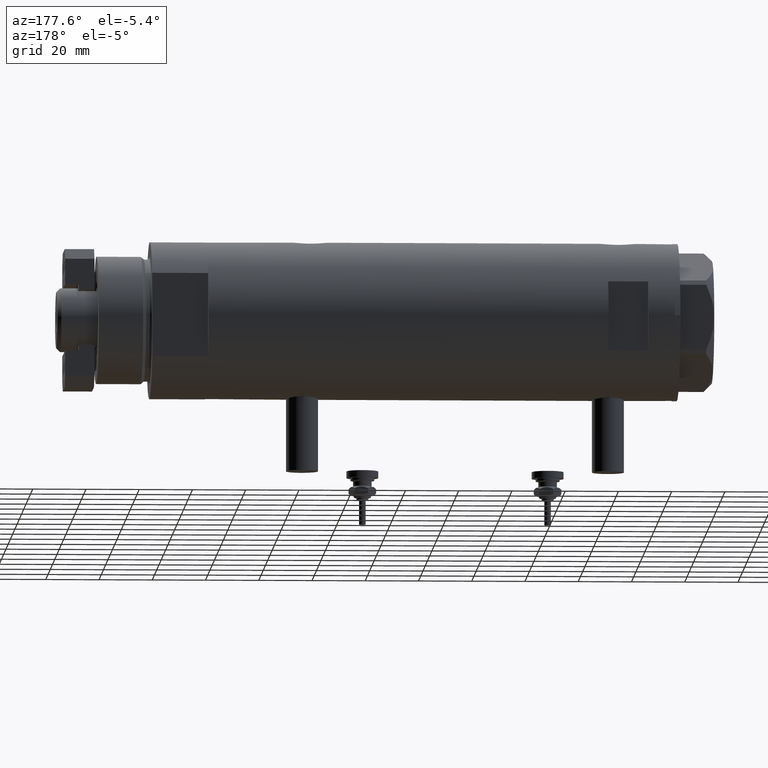
[diagram: clean part render]
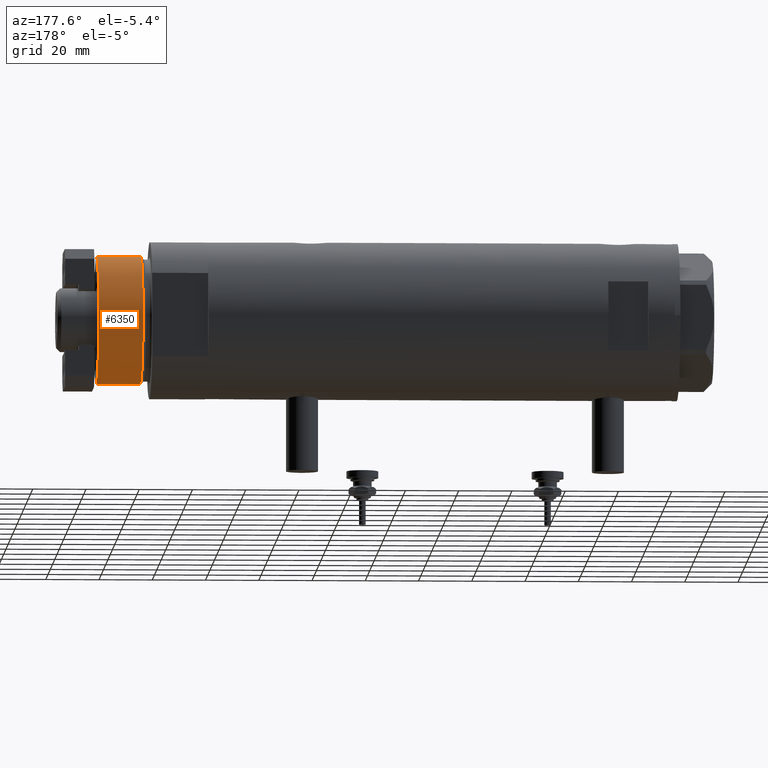
[diagram: same view with one face highlighted and labeled with its STEP entity id]
A machine part, auxiliary view. The second image highlights one B-rep face of the part: STEP entity #6350.
In plain terms, the highlighted cylindrical surface (partial cylindrical patch) has radius 24 mm, axis along (-1, -0, 0).
Its self-contained STEP definition (entity closure, byte-faithful):
#159 = VERTEX_POINT ( 'NONE', #6356 ) ;
#203 = DIRECTION ( 'NONE',  ( 1.000000000000000000, 0.000000000000000000, 0.000000000000000000 ) ) ;
#386 = CARTESIAN_POINT ( 'NONE',  ( 24.00000000000000355, 2.939152317953648289E-15, 41.00000000000000000 ) ) ;
#443 = DIRECTION ( 'NONE',  ( -0.000000000000000000, -0.000000000000000000, -1.000000000000000000 ) ) ;
#530 = LINE ( 'NONE', #3062, #665 ) ;
#638 = EDGE_CURVE ( 'NONE', #5116, #4026, #530, .T. ) ;
#665 = VECTOR ( 'NONE', #2074, 1000.000000000000000 ) ;
#714 = DIRECTION ( 'NONE',  ( 0.000000000000000000, 0.000000000000000000, 1.000000000000000000 ) ) ;
#785 = FACE_OUTER_BOUND ( 'NONE', #4215, .T. ) ;
#1061 = ORIENTED_EDGE ( 'NONE', *, *, #4135, .F. ) ;
#1318 = CARTESIAN_POINT ( 'NONE',  ( 0.000000000000000000, 0.000000000000000000, 24.37384048104054557 ) ) ;
#1657 = CARTESIAN_POINT ( 'NONE',  ( -24.00000000000000355, 0.000000000000000000, 24.37384048104054557 ) ) ;
#1868 = CIRCLE ( 'NONE', #5536, 24.00000000000000355 ) ;
#1936 = EDGE_CURVE ( 'NONE', #6087, #4026, #2619, .T. ) ;
#1955 = DIRECTION ( 'NONE',  ( -0.000000000000000000, -0.000000000000000000, 1.000000000000000000 ) ) ;
#2074 = DIRECTION ( 'NONE',  ( -0.000000000000000000, -0.000000000000000000, -1.000000000000000000 ) ) ;
#2162 = AXIS2_PLACEMENT_3D ( 'NONE', #5445, #5908, #6417 ) ;
#2293 = AXIS2_PLACEMENT_3D ( 'NONE', #1318, #1955, #3514 ) ;
#2619 = CIRCLE ( 'NONE', #2293, 24.00000000000000355 ) ;
#3062 = CARTESIAN_POINT ( 'NONE',  ( -24.00000000000000355, 0.000000000000000000, 41.00000000000000000 ) ) ;
#3433 = ORIENTED_EDGE ( 'NONE', *, *, #3806, .T. ) ;
#3459 = CARTESIAN_POINT ( 'NONE',  ( -24.00000000000000355, 0.000000000000000000, 41.00000000000000000 ) ) ;
#3514 = DIRECTION ( 'NONE',  ( 1.000000000000000000, 0.000000000000000000, 0.000000000000000000 ) ) ;
#3806 = EDGE_CURVE ( 'NONE', #159, #6087, #5544, .T. ) ;
#4026 = VERTEX_POINT ( 'NONE', #1657 ) ;
#4135 = EDGE_CURVE ( 'NONE', #159, #5116, #1868, .T. ) ;
#4215 = EDGE_LOOP ( 'NONE', ( #1061, #3433, #5094, #6384 ) ) ;
#4768 = CARTESIAN_POINT ( 'NONE',  ( 24.00000000000000355, 2.939152317953648289E-15, 24.37384048104054557 ) ) ;
#5094 = ORIENTED_EDGE ( 'NONE', *, *, #1936, .T. ) ;
#5116 = VERTEX_POINT ( 'NONE', #3459 ) ;
#5340 = CARTESIAN_POINT ( 'NONE',  ( 0.000000000000000000, 0.000000000000000000, 41.00000000000000000 ) ) ;
#5445 = CARTESIAN_POINT ( 'NONE',  ( 0.000000000000000000, 0.000000000000000000, 41.00000000000000000 ) ) ;
#5530 = VECTOR ( 'NONE', #443, 1000.000000000000000 ) ;
#5536 = AXIS2_PLACEMENT_3D ( 'NONE', #5340, #714, #203 ) ;
#5544 = LINE ( 'NONE', #386, #5530 ) ;
#5908 = DIRECTION ( 'NONE',  ( -0.000000000000000000, -0.000000000000000000, -1.000000000000000000 ) ) ;
#6087 = VERTEX_POINT ( 'NONE', #4768 ) ;
#6350 = ADVANCED_FACE ( 'NONE', ( #785 ), #6380, .T. ) ;
#6356 = CARTESIAN_POINT ( 'NONE',  ( 24.00000000000000355, 2.939152317953648289E-15, 41.00000000000000000 ) ) ;
#6380 = CYLINDRICAL_SURFACE ( 'NONE', #2162, 24.00000000000000355 ) ;
#6384 = ORIENTED_EDGE ( 'NONE', *, *, #638, .F. ) ;
#6417 = DIRECTION ( 'NONE',  ( -1.000000000000000000, 0.000000000000000000, 0.000000000000000000 ) ) ;